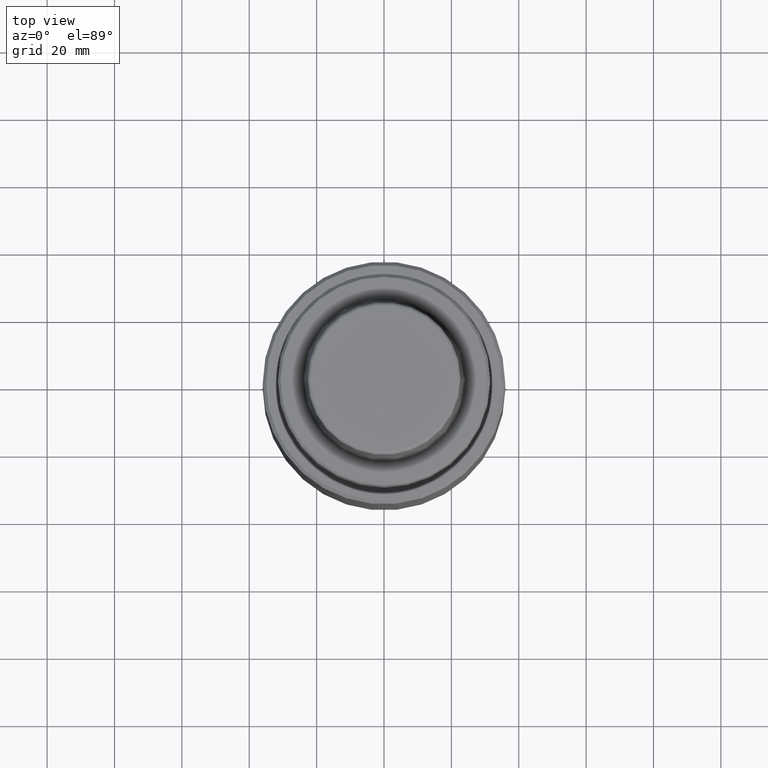
[diagram: clean part render]
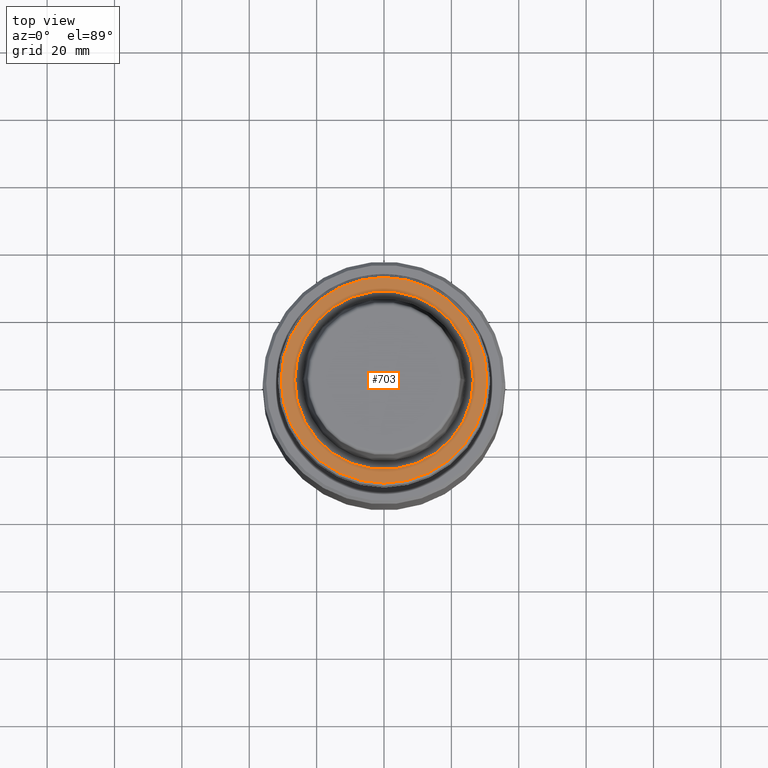
[diagram: same view with one face highlighted and labeled with its STEP entity id]
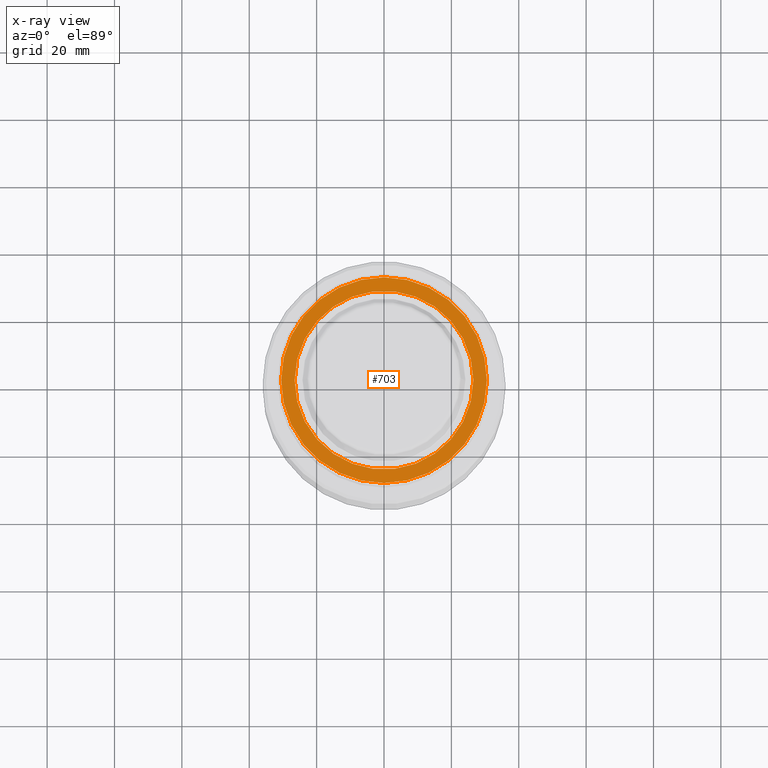
[diagram: x-ray of the same camera — body ghosted, the highlighted face saturated]
A machine part, top view. The second image highlights one B-rep face of the part: STEP entity #703.
The next image is the same camera in x-ray: the body ghosted, the highlighted face saturated — about 0% of this face is hidden behind the body in this view.
In plain terms, the highlighted planar face has unit normal (0, 0, -1).
Its self-contained STEP definition (entity closure, byte-faithful):
#11 = AXIS2_PLACEMENT_3D ( 'NONE', #638, #1296, #531 ) ;
#12 = CIRCLE ( 'NONE', #11, 30.53431457505076100 ) ;
#17 = AXIS2_PLACEMENT_3D ( 'NONE', #486, #998, #1142 ) ;
#80 = PLANE ( 'NONE',  #233 ) ;
#88 = VERTEX_POINT ( 'NONE', #590 ) ;
#122 = DIRECTION ( 'NONE',  ( -0.0000000000000000000, -0.0000000000000000000, 1.000000000000000000 ) ) ;
#168 = ORIENTED_EDGE ( 'NONE', *, *, #244, .F. ) ;
#196 = VERTEX_POINT ( 'NONE', #386 ) ;
#233 = AXIS2_PLACEMENT_3D ( 'NONE', #655, #988, #999 ) ;
#244 = EDGE_CURVE ( 'NONE', #336, #196, #769, .T. ) ;
#326 = FACE_BOUND ( 'NONE', #1223, .T. ) ;
#336 = VERTEX_POINT ( 'NONE', #1094 ) ;
#343 = FACE_OUTER_BOUND ( 'NONE', #689, .T. ) ;
#354 = ORIENTED_EDGE ( 'NONE', *, *, #848, .T. ) ;
#370 = AXIS2_PLACEMENT_3D ( 'NONE', #1306, #535, #1178 ) ;
#373 = CIRCLE ( 'NONE', #370, 30.53431457505076100 ) ;
#386 = CARTESIAN_POINT ( 'NONE',  ( -26.52499999999999900, 3.248375634738354300E-015, 0.0000000000000000000 ) ) ;
#486 = CARTESIAN_POINT ( 'NONE',  ( 0.0000000000000000000, 0.0000000000000000000, 0.0000000000000000000 ) ) ;
#491 = CARTESIAN_POINT ( 'NONE',  ( -30.53431457505076100, 3.756694181974138600E-015, 0.0000000000000000000 ) ) ;
#531 = DIRECTION ( 'NONE',  ( 1.000000000000000000, 0.0000000000000000000, 0.0000000000000000000 ) ) ;
#535 = DIRECTION ( 'NONE',  ( -0.0000000000000000000, -0.0000000000000000000, 1.000000000000000000 ) ) ;
#590 = CARTESIAN_POINT ( 'NONE',  ( 30.53431457505076100, 0.0000000000000000000, 0.0000000000000000000 ) ) ;
#604 = EDGE_CURVE ( 'NONE', #196, #336, #1281, .T. ) ;
#638 = CARTESIAN_POINT ( 'NONE',  ( 0.0000000000000000000, 0.0000000000000000000, 0.0000000000000000000 ) ) ;
#655 = CARTESIAN_POINT ( 'NONE',  ( 0.0000000000000000000, 26.52499999999999900, -1.978668964786045600E-015 ) ) ;
#673 = ORIENTED_EDGE ( 'NONE', *, *, #604, .F. ) ;
#689 = EDGE_LOOP ( 'NONE', ( #1328, #354 ) ) ;
#703 = ADVANCED_FACE ( 'NONE', ( #326, #343 ), #80, .F. ) ;
#769 = CIRCLE ( 'NONE', #17, 26.52499999999999900 ) ;
#848 = EDGE_CURVE ( 'NONE', #1145, #88, #373, .T. ) ;
#868 = EDGE_CURVE ( 'NONE', #88, #1145, #12, .T. ) ;
#875 = AXIS2_PLACEMENT_3D ( 'NONE', #1369, #122, #1262 ) ;
#988 = DIRECTION ( 'NONE',  ( 0.0000000000000000000, 0.0000000000000000000, -1.000000000000000000 ) ) ;
#998 = DIRECTION ( 'NONE',  ( -0.0000000000000000000, -0.0000000000000000000, 1.000000000000000000 ) ) ;
#999 = DIRECTION ( 'NONE',  ( -1.000000000000000000, 0.0000000000000000000, -0.0000000000000000000 ) ) ;
#1094 = CARTESIAN_POINT ( 'NONE',  ( 26.52499999999999900, 0.0000000000000000000, 0.0000000000000000000 ) ) ;
#1142 = DIRECTION ( 'NONE',  ( 1.000000000000000000, 0.0000000000000000000, 0.0000000000000000000 ) ) ;
#1145 = VERTEX_POINT ( 'NONE', #491 ) ;
#1178 = DIRECTION ( 'NONE',  ( 1.000000000000000000, 0.0000000000000000000, 0.0000000000000000000 ) ) ;
#1223 = EDGE_LOOP ( 'NONE', ( #168, #673 ) ) ;
#1262 = DIRECTION ( 'NONE',  ( 1.000000000000000000, 0.0000000000000000000, 0.0000000000000000000 ) ) ;
#1281 = CIRCLE ( 'NONE', #875, 26.52499999999999900 ) ;
#1296 = DIRECTION ( 'NONE',  ( -0.0000000000000000000, -0.0000000000000000000, 1.000000000000000000 ) ) ;
#1306 = CARTESIAN_POINT ( 'NONE',  ( 0.0000000000000000000, 0.0000000000000000000, 0.0000000000000000000 ) ) ;
#1328 = ORIENTED_EDGE ( 'NONE', *, *, #868, .T. ) ;
#1369 = CARTESIAN_POINT ( 'NONE',  ( 0.0000000000000000000, 0.0000000000000000000, 0.0000000000000000000 ) ) ;